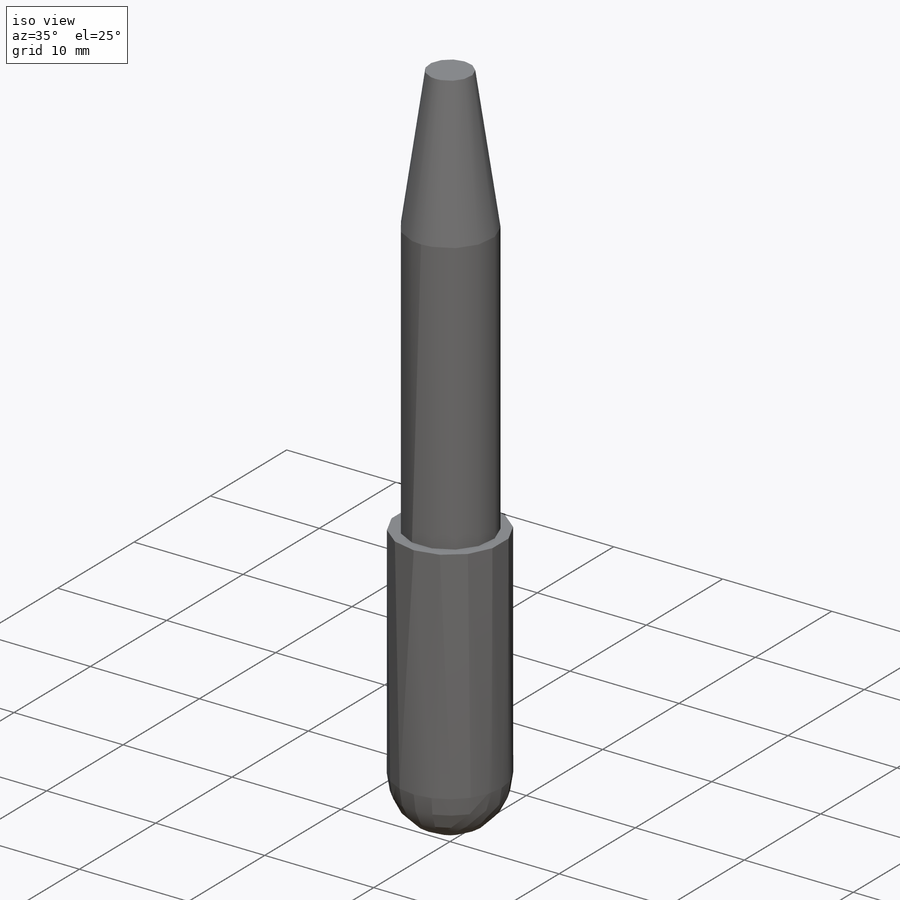
[diagram: iso view]
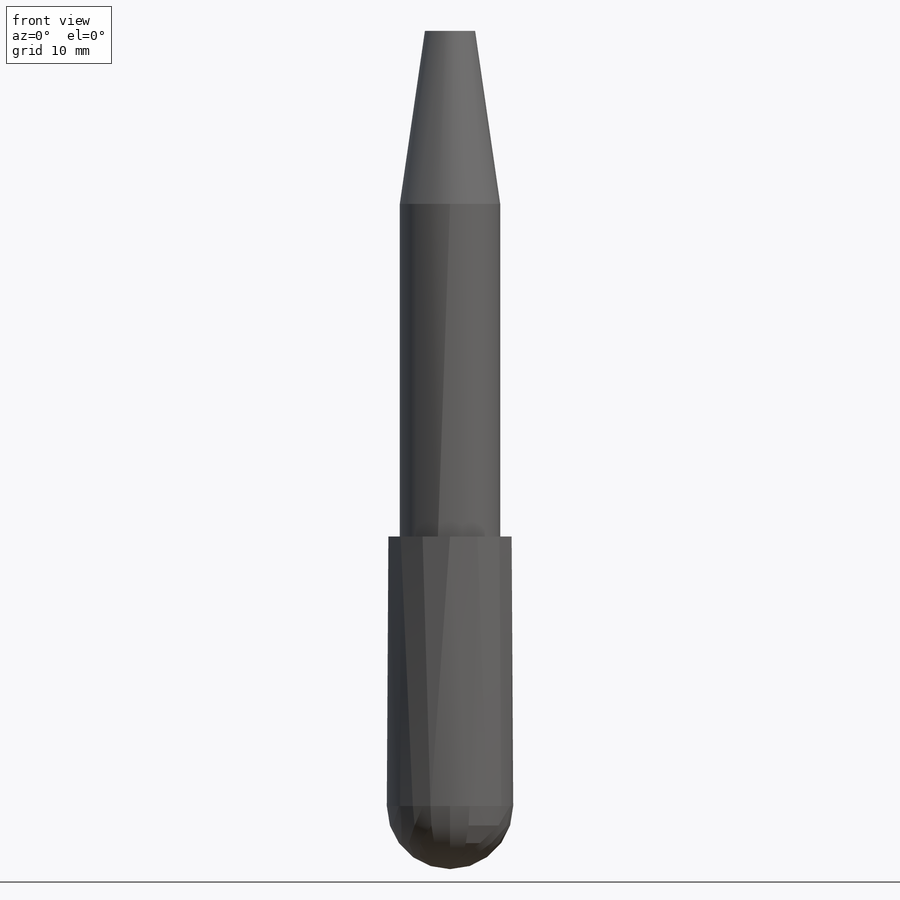
[diagram: front view]
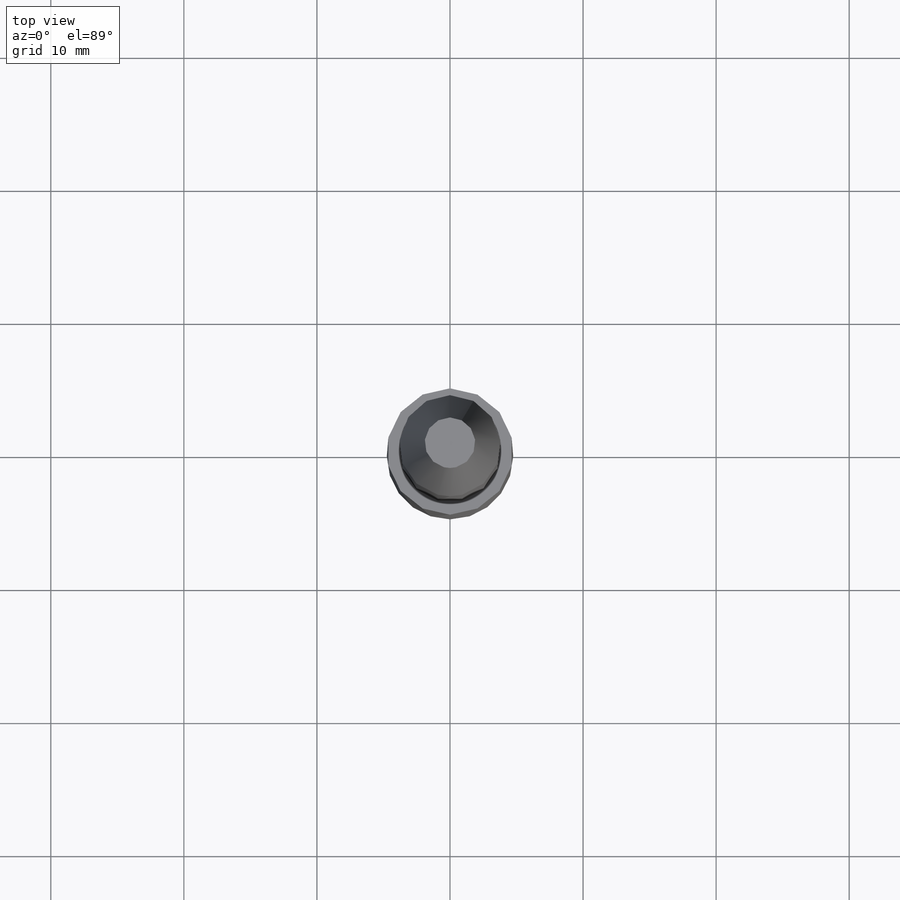
[diagram: top view]
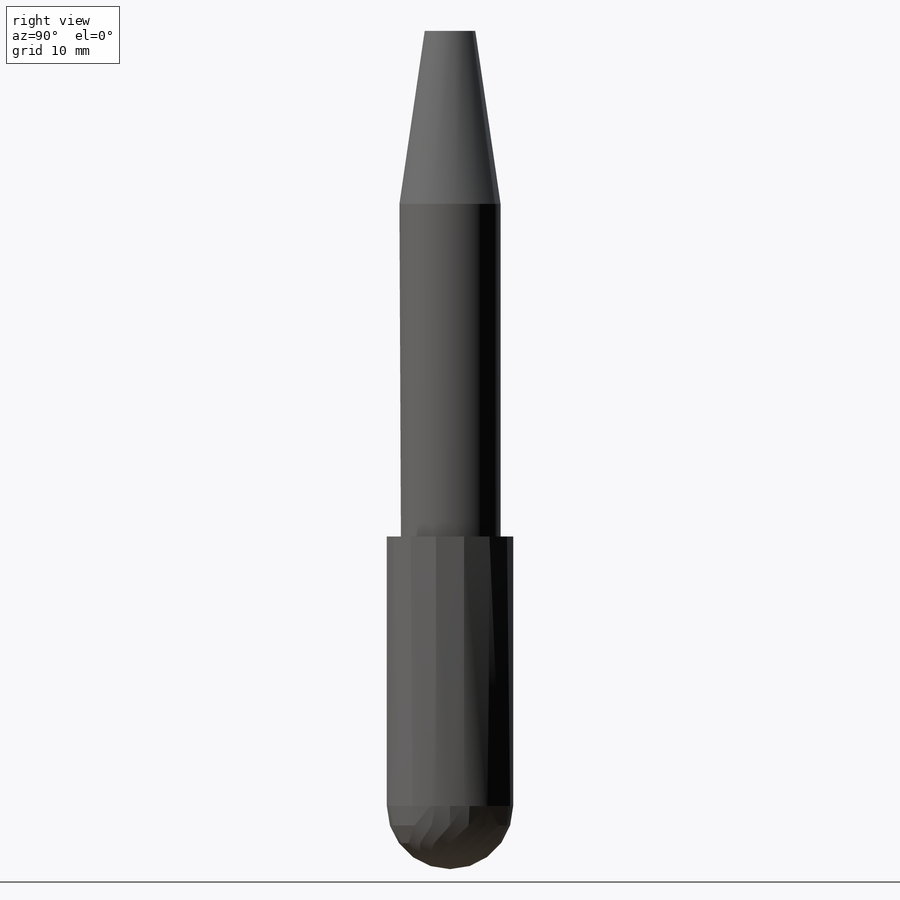
[diagram: right view]
SOLIDWORKS PART (.sldprt)
format: sldprt  version: not decoded by parser v0  size: 128,512 bytes
history: native  units: mm
features: sketch x4, extrude x2, revolve x2, material x1 (+11 scaffold rows collapsed)
feature tree (20):
  scaffold x11  (default folders/planes/origin — collapsed)
  material  "Rubber"
  sketch  "Sketch1"  dims[D1=4.75mm]
  extrude  "Extrude1"  Depth=25mm
  sketch  "Sketch2"  dims[D1=~5.723832mm]
  extrude  "Extrude2"  Depth=20.25mm
  sketch  "Sketch3"
  revolve  "Revolve1"  Angle=360deg
  sketch  "Sketch4"  dims[D1=13.0mm]
  revolve  "Revolve2"  Angle=360deg
decode coverage: 7 of 8 modeling features carry decoded parameters
note: ~ marks probable driven/reference dimensions
note: suppression state not decoded; provenance and decode notes live in map.json
